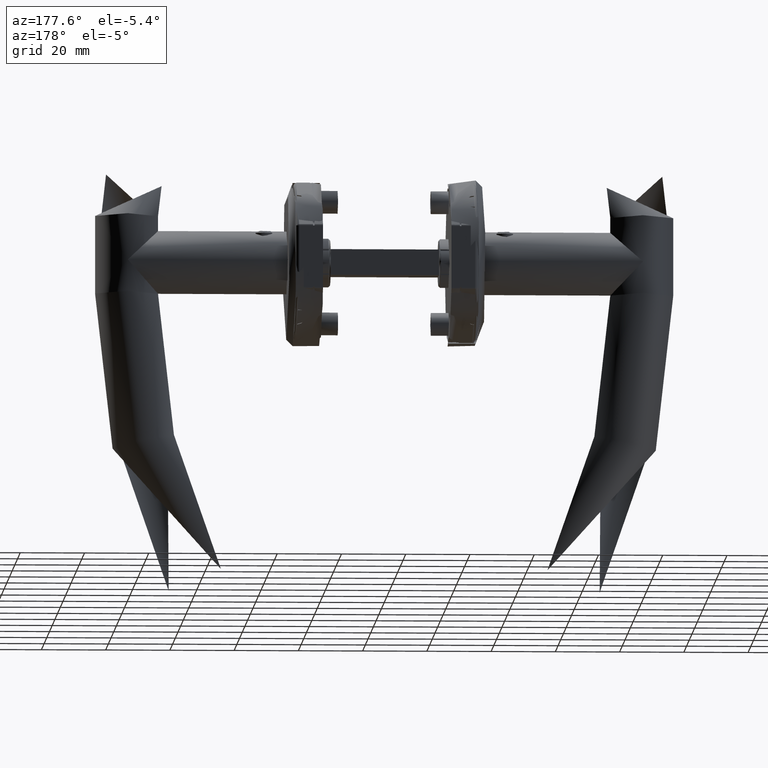
[diagram: clean part render]
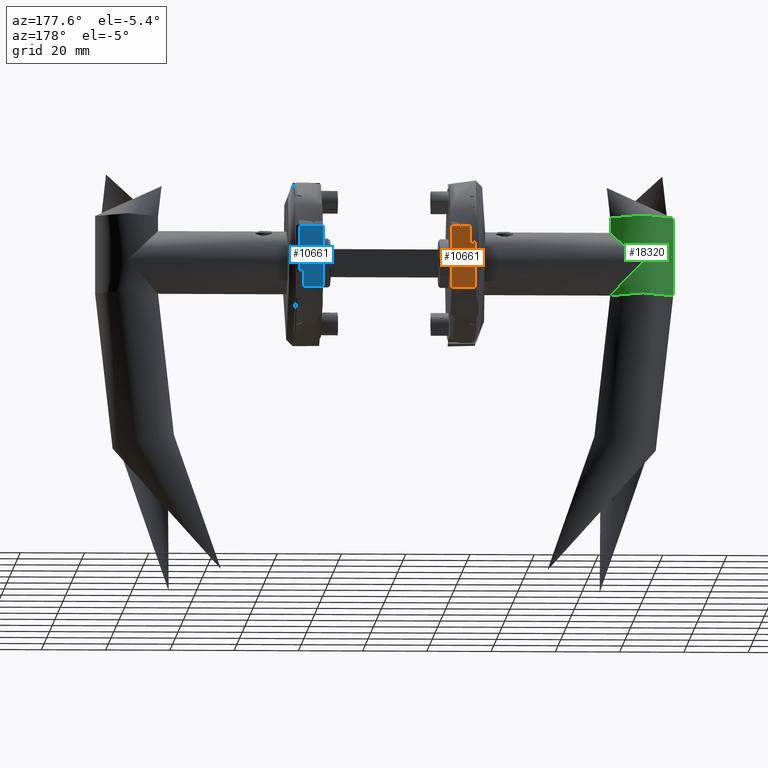
[diagram: same view with three faces highlighted in distinct colors, each labeled with its STEP entity id]
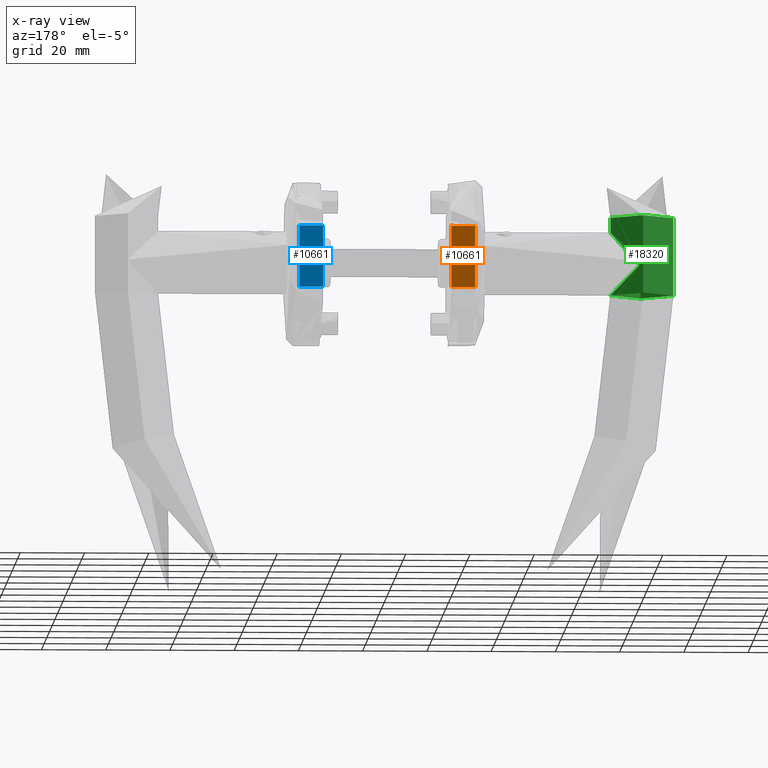
[diagram: x-ray of the same camera — body ghosted, the three highlighted faces saturated]
A machine part, auxiliary view with three faces highlighted in distinct colors.
The next image is the same camera in x-ray (body ghosted, the three faces saturated) — at least one of them is partly hidden behind the body in this view.
Their STEP definitions:

[orange] entity #10661 — the highlighted planar face has unit normal (0, -1, 0).
#275 = VECTOR ( 'NONE', #13221, 1000.000000000000000 ) ;
#457 = DIRECTION ( 'NONE',  ( -1.000000000000000000, 0.0000000000000000000, 0.0000000000000000000 ) ) ;
#464 = CARTESIAN_POINT ( 'NONE',  ( -9.591663046625434700, 23.00000000000000000, 0.0000000000000000000 ) ) ;
#619 = ORIENTED_EDGE ( 'NONE', *, *, #10645, .F. ) ;
#627 = CARTESIAN_POINT ( 'NONE',  ( 9.539916142189095900, 23.00000000000000000, 2.600000000000000100 ) ) ;
#730 = LINE ( 'NONE', #13178, #15422 ) ;
#740 = VERTEX_POINT ( 'NONE', #464 ) ;
#816 = ORIENTED_EDGE ( 'NONE', *, *, #11327, .T. ) ;
#933 = CARTESIAN_POINT ( 'NONE',  ( -9.591663046625441800, 23.00000000000000000, 10.00000000000000200 ) ) ;
#1040 = CARTESIAN_POINT ( 'NONE',  ( 9.591663046625443600, 23.00000000000000000, 10.00000000000000200 ) ) ;
#1155 = VECTOR ( 'NONE', #7990, 1000.000000000000000 ) ;
#1347 = VECTOR ( 'NONE', #6987, 1000.000000000000000 ) ;
#1453 = EDGE_CURVE ( 'NONE', #6290, #1946, #17811, .T. ) ;
#1637 = CARTESIAN_POINT ( 'NONE',  ( 9.797958971132716900, 23.00000000000000000, 3.100000000000000500 ) ) ;
#1946 = VERTEX_POINT ( 'NONE', #627 ) ;
#1965 = CARTESIAN_POINT ( 'NONE',  ( 9.591663046625443600, 23.00000000000000000, 10.00000000000000200 ) ) ;
#2015 = VERTEX_POINT ( 'NONE', #7569 ) ;
#2573 = LINE ( 'NONE', #933, #14645 ) ;
#2803 = LINE ( 'NONE', #1965, #16055 ) ;
#3066 = AXIS2_PLACEMENT_3D ( 'NONE', #9961, #8319, #19073 ) ;
#3305 = CARTESIAN_POINT ( 'NONE',  ( -9.591663046625441800, 23.00000000000000000, 10.00000000000000200 ) ) ;
#3620 = CARTESIAN_POINT ( 'NONE',  ( 9.591663046625443600, 23.00000000000000000, 0.0000000000000000000 ) ) ;
#4076 = CARTESIAN_POINT ( 'NONE',  ( 9.539916142189095900, 23.00000000000000000, 3.100000000000000100 ) ) ;
#4153 = VERTEX_POINT ( 'NONE', #17781 ) ;
#4341 = LINE ( 'NONE', #7092, #9776 ) ;
#4343 = LINE ( 'NONE', #1040, #275 ) ;
#4479 = LINE ( 'NONE', #15635, #4945 ) ;
#4582 = VERTEX_POINT ( 'NONE', #11421 ) ;
#4945 = VECTOR ( 'NONE', #457, 1000.000000000000000 ) ;
#5162 = VECTOR ( 'NONE', #9204, 1000.000000000000000 ) ;
#5275 = EDGE_CURVE ( 'NONE', #6500, #14095, #8043, .T. ) ;
#5913 = CARTESIAN_POINT ( 'NONE',  ( -9.591663046625443600, 23.00000000000000000, 7.400000000000001200 ) ) ;
#6094 = ORIENTED_EDGE ( 'NONE', *, *, #12870, .T. ) ;
#6290 = VERTEX_POINT ( 'NONE', #15111 ) ;
#6418 = VERTEX_POINT ( 'NONE', #10795 ) ;
#6500 = VERTEX_POINT ( 'NONE', #11238 ) ;
#6839 = VERTEX_POINT ( 'NONE', #3620 ) ;
#6938 = EDGE_CURVE ( 'NONE', #4582, #4153, #11768, .T. ) ;
#6987 = DIRECTION ( 'NONE',  ( -1.000000000000000000, 0.0000000000000000000, 0.0000000000000000000 ) ) ;
#7092 = CARTESIAN_POINT ( 'NONE',  ( 9.539916142189095900, 23.00000000000000000, 3.100000000000000100 ) ) ;
#7384 = EDGE_CURVE ( 'NONE', #4153, #12951, #17232, .T. ) ;
#7569 = CARTESIAN_POINT ( 'NONE',  ( 9.591663046625443600, 23.00000000000000000, 7.400000000000001200 ) ) ;
#7638 = VECTOR ( 'NONE', #11995, 1000.000000000000000 ) ;
#7810 = DIRECTION ( 'NONE',  ( 0.0000000000000000000, 0.0000000000000000000, -1.000000000000000000 ) ) ;
#7872 = ORIENTED_EDGE ( 'NONE', *, *, #15974, .T. ) ;
#7990 = DIRECTION ( 'NONE',  ( -1.000000000000000000, 0.0000000000000000000, 0.0000000000000000000 ) ) ;
#8043 = LINE ( 'NONE', #1637, #1155 ) ;
#8319 = DIRECTION ( 'NONE',  ( 0.0000000000000000000, -1.000000000000000000, 0.0000000000000000000 ) ) ;
#8601 = DIRECTION ( 'NONE',  ( 0.0000000000000000000, 0.0000000000000000000, -1.000000000000000000 ) ) ;
#9204 = DIRECTION ( 'NONE',  ( -0.0000000000000000000, -0.0000000000000000000, 1.000000000000000000 ) ) ;
#9776 = VECTOR ( 'NONE', #8601, 1000.000000000000000 ) ;
#9961 = CARTESIAN_POINT ( 'NONE',  ( 9.797958971132716900, 23.00000000000000000, 10.00000000000000200 ) ) ;
#10023 = FACE_OUTER_BOUND ( 'NONE', #16843, .T. ) ;
#10316 = CARTESIAN_POINT ( 'NONE',  ( 9.797958971132716900, 23.00000000000000000, 2.600000000000000100 ) ) ;
#10645 = EDGE_CURVE ( 'NONE', #17738, #6418, #15687, .T. ) ;
#10661 = ADVANCED_FACE ( 'NONE', ( #10023 ), #17167, .F. ) ;
#10795 = CARTESIAN_POINT ( 'NONE',  ( -9.591663046625441800, 23.00000000000000000, 2.600000000000000100 ) ) ;
#10807 = ORIENTED_EDGE ( 'NONE', *, *, #19047, .T. ) ;
#10912 = CARTESIAN_POINT ( 'NONE',  ( 9.797958971132716900, 23.00000000000000000, 7.400000000000001200 ) ) ;
#11238 = CARTESIAN_POINT ( 'NONE',  ( 9.591663046625443600, 23.00000000000000000, 3.100000000000000500 ) ) ;
#11312 = ORIENTED_EDGE ( 'NONE', *, *, #6938, .T. ) ;
#11327 = EDGE_CURVE ( 'NONE', #14095, #1946, #4341, .T. ) ;
#11421 = CARTESIAN_POINT ( 'NONE',  ( -9.539916142189095900, 23.00000000000000000, 3.100000000000000100 ) ) ;
#11768 = LINE ( 'NONE', #17486, #1347 ) ;
#11995 = DIRECTION ( 'NONE',  ( -1.000000000000000000, 0.0000000000000000000, 0.0000000000000000000 ) ) ;
#12209 = DIRECTION ( 'NONE',  ( -1.000000000000000000, 0.0000000000000000000, 0.0000000000000000000 ) ) ;
#12449 = ORIENTED_EDGE ( 'NONE', *, *, #14089, .T. ) ;
#12870 = EDGE_CURVE ( 'NONE', #6290, #6839, #4343, .T. ) ;
#12951 = VERTEX_POINT ( 'NONE', #5913 ) ;
#13178 = CARTESIAN_POINT ( 'NONE',  ( -9.539916142189095900, 23.00000000000000000, 3.100000000000000100 ) ) ;
#13221 = DIRECTION ( 'NONE',  ( 0.0000000000000000000, 0.0000000000000000000, -1.000000000000000000 ) ) ;
#13543 = ORIENTED_EDGE ( 'NONE', *, *, #7384, .T. ) ;
#13797 = ORIENTED_EDGE ( 'NONE', *, *, #18369, .T. ) ;
#13964 = DIRECTION ( 'NONE',  ( 1.000000000000000000, 0.0000000000000000000, -0.0000000000000000000 ) ) ;
#14089 = EDGE_CURVE ( 'NONE', #17738, #4582, #730, .T. ) ;
#14095 = VERTEX_POINT ( 'NONE', #4076 ) ;
#14645 = VECTOR ( 'NONE', #16046, 1000.000000000000000 ) ;
#15111 = CARTESIAN_POINT ( 'NONE',  ( 9.591663046625443600, 23.00000000000000000, 2.600000000000000100 ) ) ;
#15422 = VECTOR ( 'NONE', #16380, 1000.000000000000000 ) ;
#15635 = CARTESIAN_POINT ( 'NONE',  ( 9.797958971132716900, 23.00000000000000000, 0.0000000000000000000 ) ) ;
#15687 = LINE ( 'NONE', #10316, #7638 ) ;
#15974 = EDGE_CURVE ( 'NONE', #6839, #740, #4479, .T. ) ;
#16046 = DIRECTION ( 'NONE',  ( -0.0000000000000000000, -0.0000000000000000000, 1.000000000000000000 ) ) ;
#16055 = VECTOR ( 'NONE', #7810, 1000.000000000000000 ) ;
#16380 = DIRECTION ( 'NONE',  ( -0.0000000000000000000, -0.0000000000000000000, 1.000000000000000000 ) ) ;
#16804 = CARTESIAN_POINT ( 'NONE',  ( 9.797958971132716900, 23.00000000000000000, 2.600000000000000100 ) ) ;
#16843 = EDGE_LOOP ( 'NONE', ( #12449, #11312, #13543, #10807, #17398, #19526, #816, #17369, #6094, #7872, #13797, #619 ) ) ;
#17167 = PLANE ( 'NONE',  #3066 ) ;
#17232 = LINE ( 'NONE', #3305, #5162 ) ;
#17369 = ORIENTED_EDGE ( 'NONE', *, *, #1453, .F. ) ;
#17398 = ORIENTED_EDGE ( 'NONE', *, *, #19429, .T. ) ;
#17486 = CARTESIAN_POINT ( 'NONE',  ( 9.797958971132716900, 23.00000000000000000, 3.100000000000000500 ) ) ;
#17738 = VERTEX_POINT ( 'NONE', #18825 ) ;
#17781 = CARTESIAN_POINT ( 'NONE',  ( -9.591663046625440000, 23.00000000000000000, 3.100000000000000500 ) ) ;
#17811 = LINE ( 'NONE', #16804, #19471 ) ;
#18166 = LINE ( 'NONE', #10912, #19359 ) ;
#18369 = EDGE_CURVE ( 'NONE', #740, #6418, #2573, .T. ) ;
#18825 = CARTESIAN_POINT ( 'NONE',  ( -9.539916142189095900, 23.00000000000000000, 2.600000000000000100 ) ) ;
#19047 = EDGE_CURVE ( 'NONE', #12951, #2015, #18166, .T. ) ;
#19073 = DIRECTION ( 'NONE',  ( 0.0000000000000000000, -0.0000000000000000000, -1.000000000000000000 ) ) ;
#19359 = VECTOR ( 'NONE', #13964, 1000.000000000000000 ) ;
#19429 = EDGE_CURVE ( 'NONE', #2015, #6500, #2803, .T. ) ;
#19471 = VECTOR ( 'NONE', #12209, 1000.000000000000000 ) ;
#19526 = ORIENTED_EDGE ( 'NONE', *, *, #5275, .T. ) ;

[blue] entity #10661 — the highlighted planar face has unit normal (-0, -1, 0).
#275 = VECTOR ( 'NONE', #13221, 1000.000000000000000 ) ;
#457 = DIRECTION ( 'NONE',  ( -1.000000000000000000, 0.0000000000000000000, 0.0000000000000000000 ) ) ;
#464 = CARTESIAN_POINT ( 'NONE',  ( -9.591663046625434700, 23.00000000000000000, 0.0000000000000000000 ) ) ;
#619 = ORIENTED_EDGE ( 'NONE', *, *, #10645, .F. ) ;
#627 = CARTESIAN_POINT ( 'NONE',  ( 9.539916142189095900, 23.00000000000000000, 2.600000000000000100 ) ) ;
#730 = LINE ( 'NONE', #13178, #15422 ) ;
#740 = VERTEX_POINT ( 'NONE', #464 ) ;
#816 = ORIENTED_EDGE ( 'NONE', *, *, #11327, .T. ) ;
#933 = CARTESIAN_POINT ( 'NONE',  ( -9.591663046625441800, 23.00000000000000000, 10.00000000000000200 ) ) ;
#1040 = CARTESIAN_POINT ( 'NONE',  ( 9.591663046625443600, 23.00000000000000000, 10.00000000000000200 ) ) ;
#1155 = VECTOR ( 'NONE', #7990, 1000.000000000000000 ) ;
#1347 = VECTOR ( 'NONE', #6987, 1000.000000000000000 ) ;
#1453 = EDGE_CURVE ( 'NONE', #6290, #1946, #17811, .T. ) ;
#1637 = CARTESIAN_POINT ( 'NONE',  ( 9.797958971132716900, 23.00000000000000000, 3.100000000000000500 ) ) ;
#1946 = VERTEX_POINT ( 'NONE', #627 ) ;
#1965 = CARTESIAN_POINT ( 'NONE',  ( 9.591663046625443600, 23.00000000000000000, 10.00000000000000200 ) ) ;
#2015 = VERTEX_POINT ( 'NONE', #7569 ) ;
#2573 = LINE ( 'NONE', #933, #14645 ) ;
#2803 = LINE ( 'NONE', #1965, #16055 ) ;
#3066 = AXIS2_PLACEMENT_3D ( 'NONE', #9961, #8319, #19073 ) ;
#3305 = CARTESIAN_POINT ( 'NONE',  ( -9.591663046625441800, 23.00000000000000000, 10.00000000000000200 ) ) ;
#3620 = CARTESIAN_POINT ( 'NONE',  ( 9.591663046625443600, 23.00000000000000000, 0.0000000000000000000 ) ) ;
#4076 = CARTESIAN_POINT ( 'NONE',  ( 9.539916142189095900, 23.00000000000000000, 3.100000000000000100 ) ) ;
#4153 = VERTEX_POINT ( 'NONE', #17781 ) ;
#4341 = LINE ( 'NONE', #7092, #9776 ) ;
#4343 = LINE ( 'NONE', #1040, #275 ) ;
#4479 = LINE ( 'NONE', #15635, #4945 ) ;
#4582 = VERTEX_POINT ( 'NONE', #11421 ) ;
#4945 = VECTOR ( 'NONE', #457, 1000.000000000000000 ) ;
#5162 = VECTOR ( 'NONE', #9204, 1000.000000000000000 ) ;
#5275 = EDGE_CURVE ( 'NONE', #6500, #14095, #8043, .T. ) ;
#5913 = CARTESIAN_POINT ( 'NONE',  ( -9.591663046625443600, 23.00000000000000000, 7.400000000000001200 ) ) ;
#6094 = ORIENTED_EDGE ( 'NONE', *, *, #12870, .T. ) ;
#6290 = VERTEX_POINT ( 'NONE', #15111 ) ;
#6418 = VERTEX_POINT ( 'NONE', #10795 ) ;
#6500 = VERTEX_POINT ( 'NONE', #11238 ) ;
#6839 = VERTEX_POINT ( 'NONE', #3620 ) ;
#6938 = EDGE_CURVE ( 'NONE', #4582, #4153, #11768, .T. ) ;
#6987 = DIRECTION ( 'NONE',  ( -1.000000000000000000, 0.0000000000000000000, 0.0000000000000000000 ) ) ;
#7092 = CARTESIAN_POINT ( 'NONE',  ( 9.539916142189095900, 23.00000000000000000, 3.100000000000000100 ) ) ;
#7384 = EDGE_CURVE ( 'NONE', #4153, #12951, #17232, .T. ) ;
#7569 = CARTESIAN_POINT ( 'NONE',  ( 9.591663046625443600, 23.00000000000000000, 7.400000000000001200 ) ) ;
#7638 = VECTOR ( 'NONE', #11995, 1000.000000000000000 ) ;
#7810 = DIRECTION ( 'NONE',  ( 0.0000000000000000000, 0.0000000000000000000, -1.000000000000000000 ) ) ;
#7872 = ORIENTED_EDGE ( 'NONE', *, *, #15974, .T. ) ;
#7990 = DIRECTION ( 'NONE',  ( -1.000000000000000000, 0.0000000000000000000, 0.0000000000000000000 ) ) ;
#8043 = LINE ( 'NONE', #1637, #1155 ) ;
#8319 = DIRECTION ( 'NONE',  ( 0.0000000000000000000, -1.000000000000000000, 0.0000000000000000000 ) ) ;
#8601 = DIRECTION ( 'NONE',  ( 0.0000000000000000000, 0.0000000000000000000, -1.000000000000000000 ) ) ;
#9204 = DIRECTION ( 'NONE',  ( -0.0000000000000000000, -0.0000000000000000000, 1.000000000000000000 ) ) ;
#9776 = VECTOR ( 'NONE', #8601, 1000.000000000000000 ) ;
#9961 = CARTESIAN_POINT ( 'NONE',  ( 9.797958971132716900, 23.00000000000000000, 10.00000000000000200 ) ) ;
#10023 = FACE_OUTER_BOUND ( 'NONE', #16843, .T. ) ;
#10316 = CARTESIAN_POINT ( 'NONE',  ( 9.797958971132716900, 23.00000000000000000, 2.600000000000000100 ) ) ;
#10645 = EDGE_CURVE ( 'NONE', #17738, #6418, #15687, .T. ) ;
#10661 = ADVANCED_FACE ( 'NONE', ( #10023 ), #17167, .F. ) ;
#10795 = CARTESIAN_POINT ( 'NONE',  ( -9.591663046625441800, 23.00000000000000000, 2.600000000000000100 ) ) ;
#10807 = ORIENTED_EDGE ( 'NONE', *, *, #19047, .T. ) ;
#10912 = CARTESIAN_POINT ( 'NONE',  ( 9.797958971132716900, 23.00000000000000000, 7.400000000000001200 ) ) ;
#11238 = CARTESIAN_POINT ( 'NONE',  ( 9.591663046625443600, 23.00000000000000000, 3.100000000000000500 ) ) ;
#11312 = ORIENTED_EDGE ( 'NONE', *, *, #6938, .T. ) ;
#11327 = EDGE_CURVE ( 'NONE', #14095, #1946, #4341, .T. ) ;
#11421 = CARTESIAN_POINT ( 'NONE',  ( -9.539916142189095900, 23.00000000000000000, 3.100000000000000100 ) ) ;
#11768 = LINE ( 'NONE', #17486, #1347 ) ;
#11995 = DIRECTION ( 'NONE',  ( -1.000000000000000000, 0.0000000000000000000, 0.0000000000000000000 ) ) ;
#12209 = DIRECTION ( 'NONE',  ( -1.000000000000000000, 0.0000000000000000000, 0.0000000000000000000 ) ) ;
#12449 = ORIENTED_EDGE ( 'NONE', *, *, #14089, .T. ) ;
#12870 = EDGE_CURVE ( 'NONE', #6290, #6839, #4343, .T. ) ;
#12951 = VERTEX_POINT ( 'NONE', #5913 ) ;
#13178 = CARTESIAN_POINT ( 'NONE',  ( -9.539916142189095900, 23.00000000000000000, 3.100000000000000100 ) ) ;
#13221 = DIRECTION ( 'NONE',  ( 0.0000000000000000000, 0.0000000000000000000, -1.000000000000000000 ) ) ;
#13543 = ORIENTED_EDGE ( 'NONE', *, *, #7384, .T. ) ;
#13797 = ORIENTED_EDGE ( 'NONE', *, *, #18369, .T. ) ;
#13964 = DIRECTION ( 'NONE',  ( 1.000000000000000000, 0.0000000000000000000, -0.0000000000000000000 ) ) ;
#14089 = EDGE_CURVE ( 'NONE', #17738, #4582, #730, .T. ) ;
#14095 = VERTEX_POINT ( 'NONE', #4076 ) ;
#14645 = VECTOR ( 'NONE', #16046, 1000.000000000000000 ) ;
#15111 = CARTESIAN_POINT ( 'NONE',  ( 9.591663046625443600, 23.00000000000000000, 2.600000000000000100 ) ) ;
#15422 = VECTOR ( 'NONE', #16380, 1000.000000000000000 ) ;
#15635 = CARTESIAN_POINT ( 'NONE',  ( 9.797958971132716900, 23.00000000000000000, 0.0000000000000000000 ) ) ;
#15687 = LINE ( 'NONE', #10316, #7638 ) ;
#15974 = EDGE_CURVE ( 'NONE', #6839, #740, #4479, .T. ) ;
#16046 = DIRECTION ( 'NONE',  ( -0.0000000000000000000, -0.0000000000000000000, 1.000000000000000000 ) ) ;
#16055 = VECTOR ( 'NONE', #7810, 1000.000000000000000 ) ;
#16380 = DIRECTION ( 'NONE',  ( -0.0000000000000000000, -0.0000000000000000000, 1.000000000000000000 ) ) ;
#16804 = CARTESIAN_POINT ( 'NONE',  ( 9.797958971132716900, 23.00000000000000000, 2.600000000000000100 ) ) ;
#16843 = EDGE_LOOP ( 'NONE', ( #12449, #11312, #13543, #10807, #17398, #19526, #816, #17369, #6094, #7872, #13797, #619 ) ) ;
#17167 = PLANE ( 'NONE',  #3066 ) ;
#17232 = LINE ( 'NONE', #3305, #5162 ) ;
#17369 = ORIENTED_EDGE ( 'NONE', *, *, #1453, .F. ) ;
#17398 = ORIENTED_EDGE ( 'NONE', *, *, #19429, .T. ) ;
#17486 = CARTESIAN_POINT ( 'NONE',  ( 9.797958971132716900, 23.00000000000000000, 3.100000000000000500 ) ) ;
#17738 = VERTEX_POINT ( 'NONE', #18825 ) ;
#17781 = CARTESIAN_POINT ( 'NONE',  ( -9.591663046625440000, 23.00000000000000000, 3.100000000000000500 ) ) ;
#17811 = LINE ( 'NONE', #16804, #19471 ) ;
#18166 = LINE ( 'NONE', #10912, #19359 ) ;
#18369 = EDGE_CURVE ( 'NONE', #740, #6418, #2573, .T. ) ;
#18825 = CARTESIAN_POINT ( 'NONE',  ( -9.539916142189095900, 23.00000000000000000, 2.600000000000000100 ) ) ;
#19047 = EDGE_CURVE ( 'NONE', #12951, #2015, #18166, .T. ) ;
#19073 = DIRECTION ( 'NONE',  ( 0.0000000000000000000, -0.0000000000000000000, -1.000000000000000000 ) ) ;
#19359 = VECTOR ( 'NONE', #13964, 1000.000000000000000 ) ;
#19429 = EDGE_CURVE ( 'NONE', #2015, #6500, #2803, .T. ) ;
#19471 = VECTOR ( 'NONE', #12209, 1000.000000000000000 ) ;
#19526 = ORIENTED_EDGE ( 'NONE', *, *, #5275, .T. ) ;

[green] entity #18320 — the highlighted cylindrical surface (bore or boss wall) has radius 9.8 mm, axis along (0, -0, -1).
#242 = CIRCLE ( 'NONE', #2488, 9.800000000000009600 ) ;
#291 = ORIENTED_EDGE ( 'NONE', *, *, #9307, .F. ) ;
#639 = CYLINDRICAL_SURFACE ( 'NONE', #12113, 9.800000000000009600 ) ;
#972 = CARTESIAN_POINT ( 'NONE',  ( 4.637708504262767500, 1.128790321498917500E-032, 40.40000000000005500 ) ) ;
#1301 = ORIENTED_EDGE ( 'NONE', *, *, #7786, .T. ) ;
#1535 = DIRECTION ( 'NONE',  ( 0.0000000000000000000, 3.889170968374258800E-034, 1.000000000000000000 ) ) ;
#1572 = CARTESIAN_POINT ( 'NONE',  ( -15.54070708874365700, -9.800000000000009600, 44.45929291125638400 ) ) ;
#2488 = AXIS2_PLACEMENT_3D ( 'NONE', #6560, #9671, #3456 ) ;
#3201 = CARTESIAN_POINT ( 'NONE',  ( 4.637708504262767500, 0.0000000000000000000, 50.20000000000006700 ) ) ;
#3309 = AXIS2_PLACEMENT_3D ( 'NONE', #3201, #13764, #16822 ) ;
#3420 = EDGE_CURVE ( 'NONE', #9631, #9631, #242, .T. ) ;
#3456 = DIRECTION ( 'NONE',  ( 0.0000000000000000000, 1.151826858672363700E-033, -1.000000000000000000 ) ) ;
#3986 = CARTESIAN_POINT ( 'NONE',  ( -15.54070708874365700, 9.800000000000009600, 44.45929291125638400 ) ) ;
#4732 =( BOUNDED_CURVE ( )  B_SPLINE_CURVE ( 3, ( #16557, #9022, #1572, #13752 ),
 .UNSPECIFIED., .F., .F. ) 
 B_SPLINE_CURVE_WITH_KNOTS ( ( 4, 4 ),
 ( 0.0000000000000000000, 1.570796326794896800 ),
 .UNSPECIFIED. ) 
 CURVE ( )  GEOMETRIC_REPRESENTATION_ITEM ( )  RATIONAL_B_SPLINE_CURVE ( ( 1.000000000000000000, 0.8047378541243649400, 0.8047378541243649400, 1.000000000000000000 ) ) 
 REPRESENTATION_ITEM ( '' )  );
#4837 =( BOUNDED_CURVE ( )  B_SPLINE_CURVE ( 3, ( #19043, #3986, #7101, #19115 ),
 .UNSPECIFIED., .F., .F. ) 
 B_SPLINE_CURVE_WITH_KNOTS ( ( 4, 4 ),
 ( 4.712388980384689700, 6.283185307179586200 ),
 .UNSPECIFIED. ) 
 CURVE ( )  GEOMETRIC_REPRESENTATION_ITEM ( )  RATIONAL_B_SPLINE_CURVE ( ( 1.000000000000000000, 0.8047378541243649400, 0.8047378541243649400, 1.000000000000000000 ) ) 
 REPRESENTATION_ITEM ( '' )  );
#5278 = ORIENTED_EDGE ( 'NONE', *, *, #10214, .T. ) ;
#5864 = EDGE_LOOP ( 'NONE', ( #291 ) ) ;
#5945 =( BOUNDED_CURVE ( )  B_SPLINE_CURVE ( 3, ( #13195, #17906, #8802, #7258 ),
 .UNSPECIFIED., .F., .F. ) 
 B_SPLINE_CURVE_WITH_KNOTS ( ( 4, 4 ),
 ( 4.712388980384689700, 7.853981633974482800 ),
 .UNSPECIFIED. ) 
 CURVE ( )  GEOMETRIC_REPRESENTATION_ITEM ( )  RATIONAL_B_SPLINE_CURVE ( ( 1.000000000000000000, 0.3333333333333333700, 0.3333333333333333700, 1.000000000000000000 ) ) 
 REPRESENTATION_ITEM ( '' )  );
#6560 = CARTESIAN_POINT ( 'NONE',  ( -19.59999999999996600, 0.0000000000000000000, 50.20000000000006700 ) ) ;
#7101 = CARTESIAN_POINT ( 'NONE',  ( -19.59999999999998700, 5.740707088743673300, 40.40000000000004800 ) ) ;
#7258 = CARTESIAN_POINT ( 'NONE',  ( -9.799999999999988300, 9.799999999999997200, 50.20000000000006700 ) ) ;
#7744 = VERTEX_POINT ( 'NONE', #972 ) ;
#7786 = EDGE_CURVE ( 'NONE', #8748, #7925, #5945, .T. ) ;
#7838 = DIRECTION ( 'NONE',  ( -1.000000000000000000, 0.0000000000000000000, -1.848892746611746400E-031 ) ) ;
#7925 = VERTEX_POINT ( 'NONE', #14667 ) ;
#8748 = VERTEX_POINT ( 'NONE', #9533 ) ;
#8802 = CARTESIAN_POINT ( 'NONE',  ( 9.799999999999998900, 9.800000000000006000, 30.60000000000005500 ) ) ;
#8965 = ORIENTED_EDGE ( 'NONE', *, *, #18821, .T. ) ;
#9022 = CARTESIAN_POINT ( 'NONE',  ( -19.59999999999998700, -5.740707088743673300, 40.40000000000004800 ) ) ;
#9307 = EDGE_CURVE ( 'NONE', #7744, #7744, #9343, .T. ) ;
#9343 = CIRCLE ( 'NONE', #3309, 9.800000000000009600 ) ;
#9533 = CARTESIAN_POINT ( 'NONE',  ( -9.799999999999988300, -9.799999999999997200, 50.20000000000006700 ) ) ;
#9631 = VERTEX_POINT ( 'NONE', #13614 ) ;
#9671 = DIRECTION ( 'NONE',  ( 1.000000000000000000, 0.0000000000000000000, -2.775557561562878400E-017 ) ) ;
#10214 = EDGE_CURVE ( 'NONE', #9631, #8748, #4732, .T. ) ;
#12113 = AXIS2_PLACEMENT_3D ( 'NONE', #13840, #7838, #1535 ) ;
#12364 = EDGE_LOOP ( 'NONE', ( #5278, #1301, #8965, #17918 ) ) ;
#13195 = CARTESIAN_POINT ( 'NONE',  ( -9.799999999999988300, -9.799999999999997200, 50.20000000000006700 ) ) ;
#13614 = CARTESIAN_POINT ( 'NONE',  ( -19.59999999999998000, 0.0000000000000000000, 40.39999999999999100 ) ) ;
#13752 = CARTESIAN_POINT ( 'NONE',  ( -9.799999999999988300, -9.799999999999997200, 50.20000000000006700 ) ) ;
#13764 = DIRECTION ( 'NONE',  ( 1.000000000000000000, 0.0000000000000000000, -2.775557561562878400E-017 ) ) ;
#13840 = CARTESIAN_POINT ( 'NONE',  ( 4.637708504262767500, 0.0000000000000000000, 50.20000000000006700 ) ) ;
#14384 = FACE_OUTER_BOUND ( 'NONE', #12364, .T. ) ;
#14667 = CARTESIAN_POINT ( 'NONE',  ( -9.799999999999988300, 9.799999999999997200, 50.20000000000006700 ) ) ;
#16557 = CARTESIAN_POINT ( 'NONE',  ( -19.59999999999998000, 0.0000000000000000000, 40.39999999999999100 ) ) ;
#16822 = DIRECTION ( 'NONE',  ( 0.0000000000000000000, 1.151826858672363700E-033, -1.000000000000000000 ) ) ;
#17906 = CARTESIAN_POINT ( 'NONE',  ( 9.799999999999997200, -9.800000000000011400, 30.60000000000005500 ) ) ;
#17918 = ORIENTED_EDGE ( 'NONE', *, *, #3420, .T. ) ;
#18161 = FACE_OUTER_BOUND ( 'NONE', #5864, .T. ) ;
#18320 = ADVANCED_FACE ( 'NONE', ( #18161, #14384 ), #639, .T. ) ;
#18821 = EDGE_CURVE ( 'NONE', #7925, #9631, #4837, .T. ) ;
#19043 = CARTESIAN_POINT ( 'NONE',  ( -9.799999999999988300, 9.799999999999997200, 50.20000000000006700 ) ) ;
#19115 = CARTESIAN_POINT ( 'NONE',  ( -19.59999999999998000, 0.0000000000000000000, 40.39999999999999100 ) ) ;